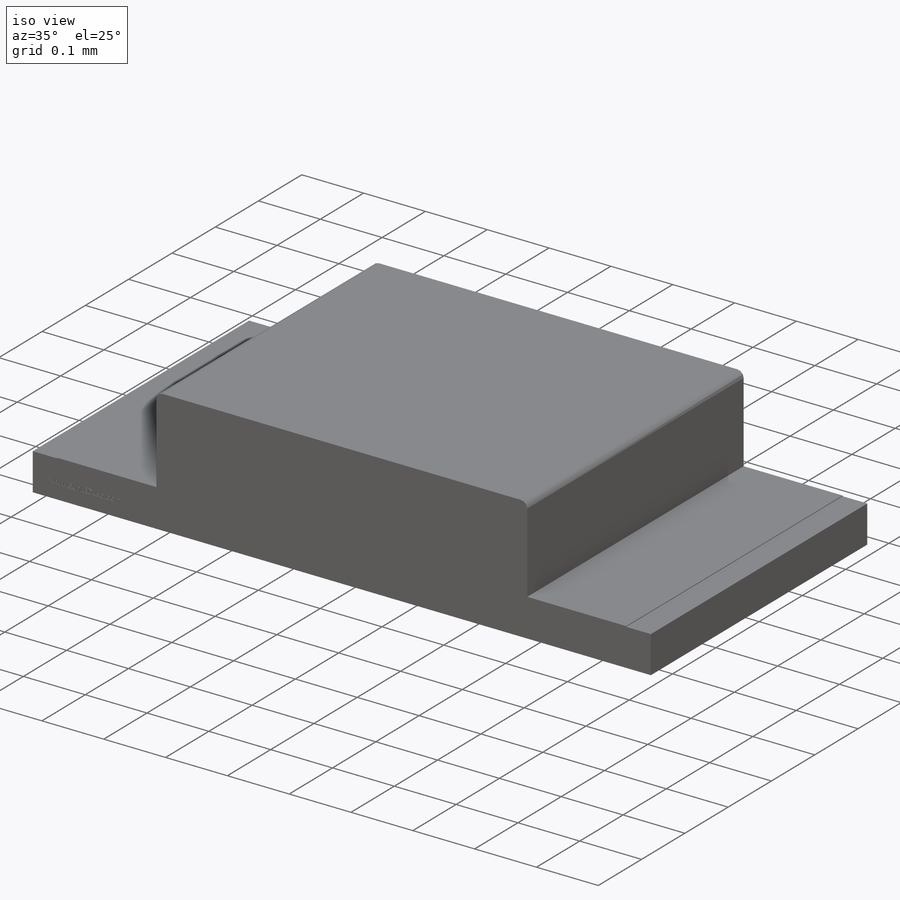
[diagram: iso view]
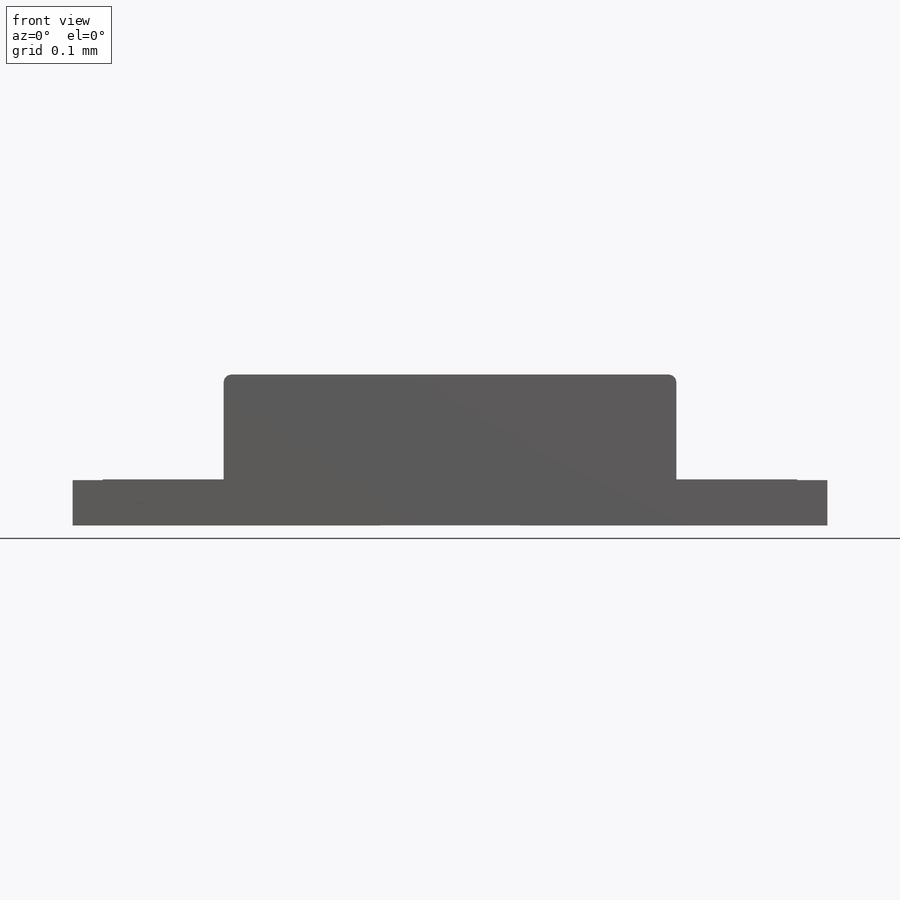
[diagram: front view]
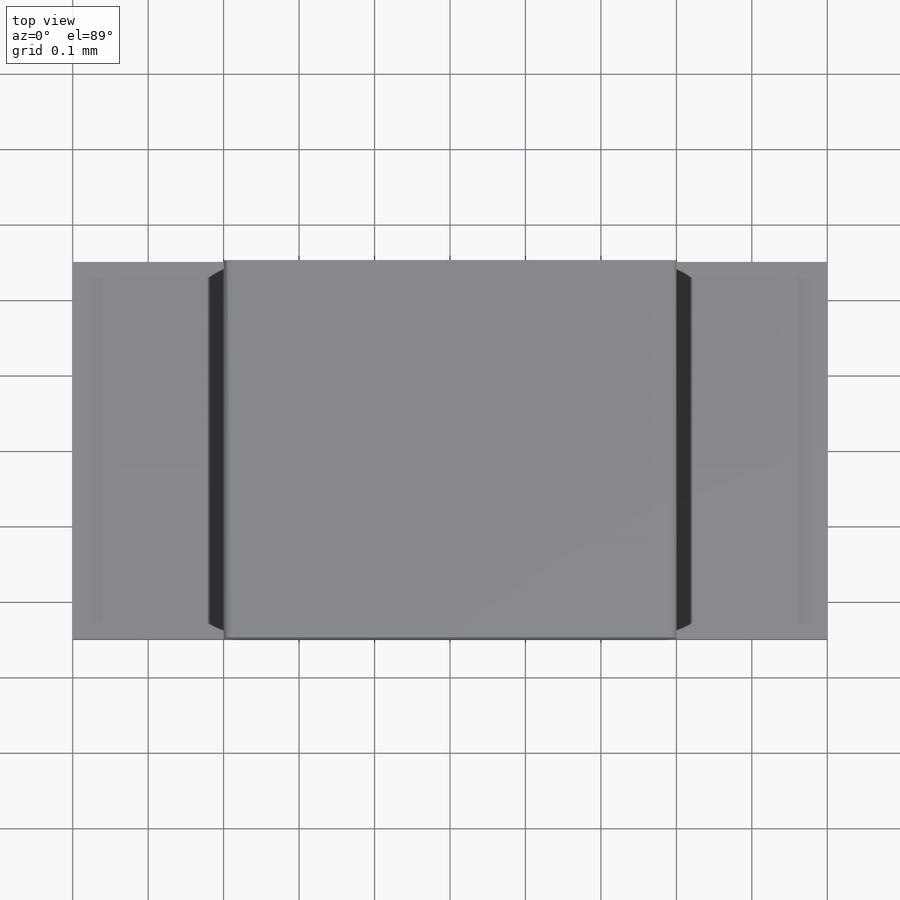
[diagram: top view]
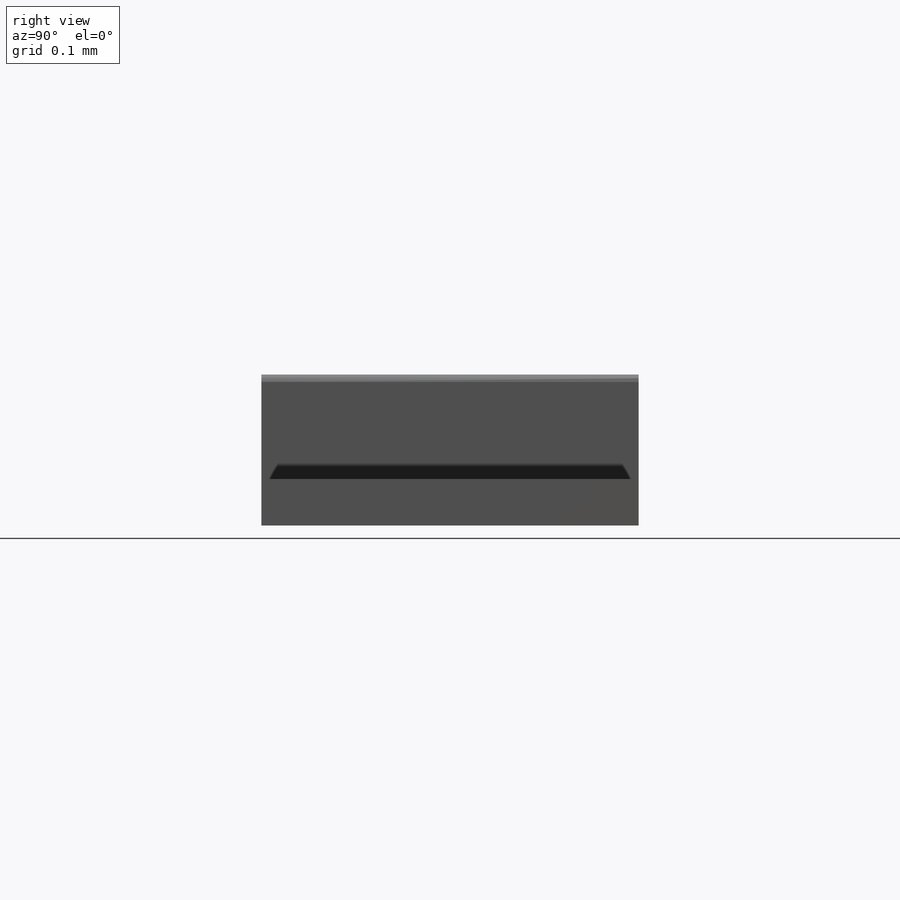
[diagram: right view]
SOLIDWORKS PART (.sldprt)
format: sldprt  version: not decoded by parser v0  size: 548,864 bytes
history: native  units: mm
features: sketch x5, extrude x4, material x1, fillet x1, cut_extrude x1 (+11 scaffold rows collapsed)
feature tree (23):
  scaffold x11  (default folders/planes/origin — collapsed)
  material  "Material <not specified>"
  sketch  "Sketch1"  dims[c1.D1=0.06mm c1.D2=1.0mm c1.D3=0.6mm c1.D4=0.55mm c1.D5=0.2mm c2.D4=0.55mm c2.D2=1.0mm c2.D1=0.58mm]
  extrude  "Extrude1"  Depth=0.5mm
  extrude  "Extrude2"  [1 undecoded]
  sketch  "Sketch1<3>"  dims[D1=0.5mm]
  sketch  "Sketch2"  dims[D1=0.4mm]
  extrude  "Extrude4"  Depth=0.001mm
  fillet  "Fillet1"  Radius=0.01mm
  sketch  "Sketch4"  dims[D1=0.05mm D2=0.4mm]
  cut_extrude  "Cut-Extrude1"  Depth=0.001mm
  sketch  "Sketch5"  dims[D1=0.6mm]
  extrude  "Extrude5"  Depth=0.001mm
decode coverage: 10 of 11 modeling features carry decoded parameters
note: 1 parameter value undecoded
note: suppression state not decoded; provenance and decode notes live in map.json
